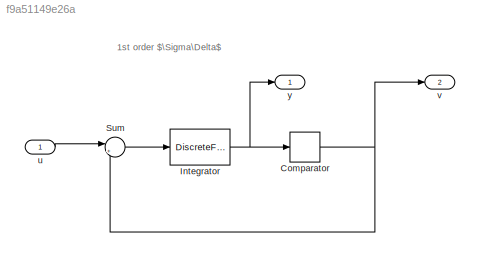
MODEL slx_f9a51149e26a
KIND model
CONFIG AbsTol = 1e-6
CONFIG EnableMultiTasking = off
CONFIG FixedStep = auto
CONFIG MaxStep = auto
CONFIG MinStep = auto
CONFIG RelTol = 1e-3
CONFIG SampleTimeConstraint = Unconstrained
CONFIG SolverName = FixedStepDiscrete
CONFIG StartTime = 0.0
CONFIG StopTime = 1024
BLOCK [Relay] Comparator
  OffOutputValue = -1
BLOCK [DiscreteFilter] Integrator
  Denominator = [1 -1]
  InputPortMap = u0
  Numerator = [0 1]
  SampleTime = Ts
BLOCK [Sum] Sum
  InputSameDT = on
  Inputs = |+-
  OutDataTypeStr = Inherit: Same as first input
  SaturateOnIntegerOverflow = on
BLOCK [Inport] u
BLOCK [Outport] v
  IconDisplay = Signal name
  Port = 2
  SignalName = v
BLOCK [Outport] y
  IconDisplay = Signal name
  SignalName = y
ANNOTATION (root): 1st order $\Sigma\Delta$
NET Comparator:1 -> Sum:2, v:1
NET Integrator:1 -> Comparator:1, y:1
LINE Sum:1 -> Integrator:1
LINE u:1 -> Sum:1
note: NET lines group one-source signal fan-out (src -> all destinations, sorted); 1:1 wires keep LINE
